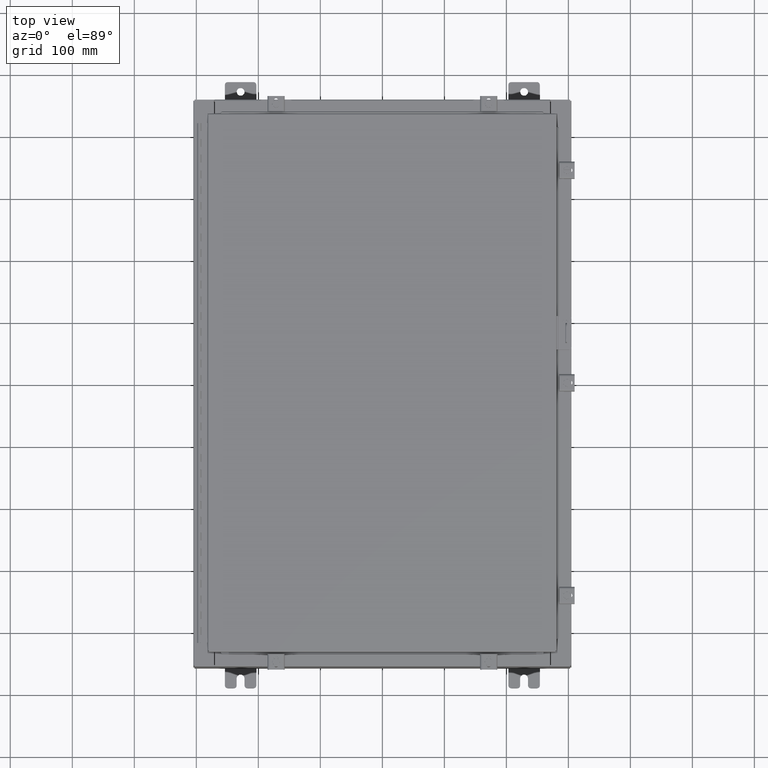
[diagram: clean part render]
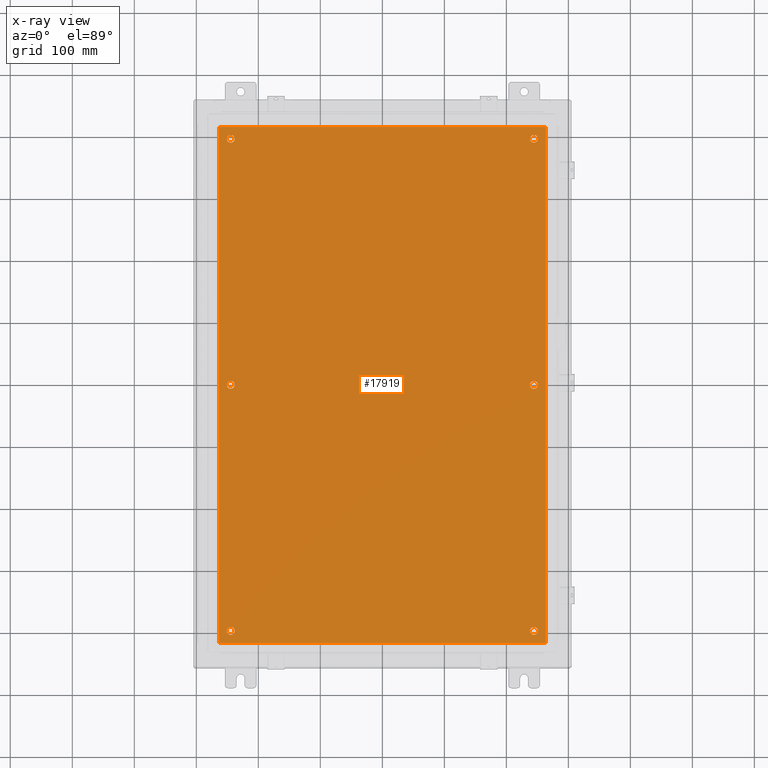
[diagram: x-ray — body ghosted, one internal face saturated and labeled with its STEP entity id]
A machine part, top view, then the same camera in x-ray: the body is ghosted and one INTERNAL B-rep face — a face not visible from any outside direction — is saturated and labeled: STEP entity #17919.
In plain terms, the highlighted planar face has unit normal (0, 0, -1).
Its self-contained STEP definition (entity closure, byte-faithful):
#24 = EDGE_CURVE ( 'NONE', #20375, #815, #9515, .T. ) ;
#240 = ORIENTED_EDGE ( 'NONE', *, *, #19596, .T. ) ;
#317 = EDGE_LOOP ( 'NONE', ( #17447, #3819 ) ) ;
#356 = EDGE_LOOP ( 'NONE', ( #40399, #34758 ) ) ;
#681 = VERTEX_POINT ( 'NONE', #19083 ) ;
#815 = VERTEX_POINT ( 'NONE', #13202 ) ;
#890 = CARTESIAN_POINT ( 'NONE',  ( 10.38300000000000100, -16.38299999999999600, -0.1040000000000008600 ) ) ;
#1996 = VERTEX_POINT ( 'NONE', #890 ) ;
#2500 = DIRECTION ( 'NONE',  ( 1.000000000000000000, -0.0000000000000000000, -0.0000000000000000000 ) ) ;
#3105 = CIRCLE ( 'NONE', #25142, 0.2499999999999998100 ) ;
#3367 = CARTESIAN_POINT ( 'NONE',  ( -10.38300000000000100, 16.38300000000000300, -0.1039999999999988200 ) ) ;
#3374 = CARTESIAN_POINT ( 'NONE',  ( -9.875000000000007100, -15.62500000000000200, -0.1040000000000000400 ) ) ;
#3436 = EDGE_CURVE ( 'NONE', #17209, #27864, #36183, .T. ) ;
#3663 = VECTOR ( 'NONE', #22872, 39.37007874015748100 ) ;
#3680 = VERTEX_POINT ( 'NONE', #15118 ) ;
#3767 = AXIS2_PLACEMENT_3D ( 'NONE', #33427, #13783, #36730 ) ;
#3819 = ORIENTED_EDGE ( 'NONE', *, *, #33377, .T. ) ;
#5242 = VECTOR ( 'NONE', #37963, 39.37007874015748100 ) ;
#5345 = DIRECTION ( 'NONE',  ( -1.000000000000000000, 0.0000000000000000000, -0.0000000000000000000 ) ) ;
#5378 = ORIENTED_EDGE ( 'NONE', *, *, #39048, .T. ) ;
#6387 = AXIS2_PLACEMENT_3D ( 'NONE', #11562, #34528, #14861 ) ;
#6413 = ORIENTED_EDGE ( 'NONE', *, *, #39363, .F. ) ;
#6574 = FACE_BOUND ( 'NONE', #13461, .T. ) ;
#6702 = EDGE_CURVE ( 'NONE', #815, #20375, #18665, .T. ) ;
#6957 = ORIENTED_EDGE ( 'NONE', *, *, #3436, .T. ) ;
#7364 = EDGE_LOOP ( 'NONE', ( #13722, #6413, #33625, #38542 ) ) ;
#7974 = ORIENTED_EDGE ( 'NONE', *, *, #24, .T. ) ;
#8390 = CARTESIAN_POINT ( 'NONE',  ( 9.625000000000007100, 2.620299400612403500E-015, -0.1040000000000000400 ) ) ;
#8492 = CARTESIAN_POINT ( 'NONE',  ( -9.875000000000007100, 15.62500000000000200, -0.1040000000000000400 ) ) ;
#8574 = EDGE_CURVE ( 'NONE', #26421, #36273, #27223, .T. ) ;
#9242 = ORIENTED_EDGE ( 'NONE', *, *, #21433, .T. ) ;
#9515 = CIRCLE ( 'NONE', #22534, 0.2500000000000008900 ) ;
#9617 = EDGE_LOOP ( 'NONE', ( #5378, #9242 ) ) ;
#9637 = CARTESIAN_POINT ( 'NONE',  ( 9.875000000000007100, 15.62500000000000200, -0.1040000000000000400 ) ) ;
#9793 = CARTESIAN_POINT ( 'NONE',  ( -9.625000000000005300, 2.628543122537473900E-016, -0.1040000000000000400 ) ) ;
#10084 = EDGE_CURVE ( 'NONE', #28960, #1996, #23552, .T. ) ;
#10137 = ORIENTED_EDGE ( 'NONE', *, *, #40440, .T. ) ;
#10491 = DIRECTION ( 'NONE',  ( -0.0000000000000000000, -0.0000000000000000000, 1.000000000000000000 ) ) ;
#11430 = AXIS2_PLACEMENT_3D ( 'NONE', #31216, #11539, #34509 ) ;
#11450 = CARTESIAN_POINT ( 'NONE',  ( 9.625000000000007100, -15.62500000000000200, -0.1040000000000000400 ) ) ;
#11539 = DIRECTION ( 'NONE',  ( -0.0000000000000000000, -0.0000000000000000000, 1.000000000000000000 ) ) ;
#11562 = CARTESIAN_POINT ( 'NONE',  ( -9.625000000000007100, -15.62500000000000200, -0.1040000000000000400 ) ) ;
#11676 = DIRECTION ( 'NONE',  ( -1.000000000000000000, 0.0000000000000000000, 0.0000000000000000000 ) ) ;
#12412 = LINE ( 'NONE', #35934, #3663 ) ;
#12736 = DIRECTION ( 'NONE',  ( -0.0000000000000000000, -0.0000000000000000000, 1.000000000000000000 ) ) ;
#12766 = VECTOR ( 'NONE', #2500, 39.37007874015748100 ) ;
#12871 = LINE ( 'NONE', #31773, #28277 ) ;
#13112 = DIRECTION ( 'NONE',  ( -1.000000000000000000, 0.0000000000000000000, 0.0000000000000000000 ) ) ;
#13202 = CARTESIAN_POINT ( 'NONE',  ( -9.375000000000007100, 15.62500000000000200, -0.1040000000000000400 ) ) ;
#13461 = EDGE_LOOP ( 'NONE', ( #23571, #7974 ) ) ;
#13722 = ORIENTED_EDGE ( 'NONE', *, *, #10084, .F. ) ;
#13740 = EDGE_CURVE ( 'NONE', #19704, #19251, #22995, .T. ) ;
#13783 = DIRECTION ( 'NONE',  ( -0.0000000000000000000, -0.0000000000000000000, 1.000000000000000000 ) ) ;
#13914 = ORIENTED_EDGE ( 'NONE', *, *, #13740, .T. ) ;
#14308 = AXIS2_PLACEMENT_3D ( 'NONE', #32416, #12736, #35724 ) ;
#14570 = CIRCLE ( 'NONE', #21692, 0.2499999999999998100 ) ;
#14732 = AXIS2_PLACEMENT_3D ( 'NONE', #35242, #15538, #38512 ) ;
#14766 = DIRECTION ( 'NONE',  ( -1.000000000000000000, 0.0000000000000000000, 0.0000000000000000000 ) ) ;
#14861 = DIRECTION ( 'NONE',  ( -1.000000000000000000, 0.0000000000000000000, 0.0000000000000000000 ) ) ;
#15118 = CARTESIAN_POINT ( 'NONE',  ( 9.375000000000007100, -15.62500000000000200, -0.1040000000000000400 ) ) ;
#15301 = FACE_BOUND ( 'NONE', #356, .T. ) ;
#15538 = DIRECTION ( 'NONE',  ( -0.0000000000000000000, -0.0000000000000000000, 1.000000000000000000 ) ) ;
#16447 = DIRECTION ( 'NONE',  ( -0.0000000000000000000, -0.0000000000000000000, 1.000000000000000000 ) ) ;
#17035 = CARTESIAN_POINT ( 'NONE',  ( 9.625000000000007100, -15.62500000000000200, -0.1040000000000000400 ) ) ;
#17209 = VERTEX_POINT ( 'NONE', #17420 ) ;
#17372 = FACE_BOUND ( 'NONE', #22250, .T. ) ;
#17388 = CARTESIAN_POINT ( 'NONE',  ( 10.38300000000000100, 16.38300000000000300, -0.1040000000000008600 ) ) ;
#17420 = CARTESIAN_POINT ( 'NONE',  ( 9.875000000000007100, 2.620299400612403500E-015, -0.1040000000000000400 ) ) ;
#17447 = ORIENTED_EDGE ( 'NONE', *, *, #8574, .T. ) ;
#17694 = VERTEX_POINT ( 'NONE', #17388 ) ;
#17919 = ADVANCED_FACE ( 'NONE', ( #17372, #41543, #32787, #24022, #15301, #6574, #40531 ), #28181, .T. ) ;
#18425 = CARTESIAN_POINT ( 'NONE',  ( 0.0000000000000000000, 0.0000000000000000000, -0.1040000000000000400 ) ) ;
#18432 = CARTESIAN_POINT ( 'NONE',  ( -9.375000000000005300, 2.628543122537473900E-016, -0.1040000000000000400 ) ) ;
#18665 = CIRCLE ( 'NONE', #14308, 0.2500000000000008900 ) ;
#18828 = AXIS2_PLACEMENT_3D ( 'NONE', #17035, #40049, #20362 ) ;
#18921 = CARTESIAN_POINT ( 'NONE',  ( -10.50000000000000200, -16.38299999999999600, -0.1040000000000008600 ) ) ;
#19083 = CARTESIAN_POINT ( 'NONE',  ( 9.875000000000007100, -15.62500000000000200, -0.1040000000000000400 ) ) ;
#19251 = VERTEX_POINT ( 'NONE', #29095 ) ;
#19291 = DIRECTION ( 'NONE',  ( -0.0000000000000000000, -0.0000000000000000000, 1.000000000000000000 ) ) ;
#19547 = CIRCLE ( 'NONE', #14732, 0.2500000000000008900 ) ;
#19596 = EDGE_CURVE ( 'NONE', #27864, #17209, #31093, .T. ) ;
#19704 = VERTEX_POINT ( 'NONE', #18432 ) ;
#20296 = VERTEX_POINT ( 'NONE', #41114 ) ;
#20362 = DIRECTION ( 'NONE',  ( -1.000000000000000000, 0.0000000000000000000, 0.0000000000000000000 ) ) ;
#20375 = VERTEX_POINT ( 'NONE', #8492 ) ;
#21433 = EDGE_CURVE ( 'NONE', #3680, #681, #14570, .T. ) ;
#21692 = AXIS2_PLACEMENT_3D ( 'NONE', #11450, #34432, #14766 ) ;
#21780 = VERTEX_POINT ( 'NONE', #3367 ) ;
#22250 = EDGE_LOOP ( 'NONE', ( #6957, #240 ) ) ;
#22534 = AXIS2_PLACEMENT_3D ( 'NONE', #38957, #19291, #42270 ) ;
#22711 = LINE ( 'NONE', #34691, #5242 ) ;
#22872 = DIRECTION ( 'NONE',  ( 0.0000000000000000000, 1.000000000000000000, 0.0000000000000000000 ) ) ;
#22995 = CIRCLE ( 'NONE', #35044, 0.2500000000000008900 ) ;
#23269 = CARTESIAN_POINT ( 'NONE',  ( -10.38300000000000100, -16.38299999999999600, -0.1040000000000008600 ) ) ;
#23552 = LINE ( 'NONE', #18921, #12766 ) ;
#23571 = ORIENTED_EDGE ( 'NONE', *, *, #6702, .T. ) ;
#24022 = FACE_BOUND ( 'NONE', #9617, .T. ) ;
#24338 = EDGE_LOOP ( 'NONE', ( #13914, #10137 ) ) ;
#24650 = CIRCLE ( 'NONE', #3767, 0.2500000000000008900 ) ;
#25008 = DIRECTION ( 'NONE',  ( 0.0000000000000000000, 0.0000000000000000000, -1.000000000000000000 ) ) ;
#25142 = AXIS2_PLACEMENT_3D ( 'NONE', #36112, #16447, #39450 ) ;
#25704 = AXIS2_PLACEMENT_3D ( 'NONE', #30170, #10491, #33456 ) ;
#26421 = VERTEX_POINT ( 'NONE', #42173 ) ;
#26946 = AXIS2_PLACEMENT_3D ( 'NONE', #18425, #25008, #5345 ) ;
#27223 = CIRCLE ( 'NONE', #6387, 0.2500000000000008900 ) ;
#27258 = EDGE_CURVE ( 'NONE', #41007, #20296, #27805, .T. ) ;
#27805 = CIRCLE ( 'NONE', #25704, 0.2499999999999998100 ) ;
#27864 = VERTEX_POINT ( 'NONE', #40065 ) ;
#28181 = PLANE ( 'NONE',  #26946 ) ;
#28277 = VECTOR ( 'NONE', #35084, 39.37007874015748100 ) ;
#28960 = VERTEX_POINT ( 'NONE', #23269 ) ;
#29095 = CARTESIAN_POINT ( 'NONE',  ( -9.875000000000005300, 2.934704822324310800E-016, -0.1040000000000000400 ) ) ;
#30170 = CARTESIAN_POINT ( 'NONE',  ( 9.625000000000007100, 15.62500000000000200, -0.1040000000000000400 ) ) ;
#31093 = CIRCLE ( 'NONE', #11430, 0.2499999999999998100 ) ;
#31216 = CARTESIAN_POINT ( 'NONE',  ( 9.625000000000007100, 2.620299400612403500E-015, -0.1040000000000000400 ) ) ;
#31342 = DIRECTION ( 'NONE',  ( -0.0000000000000000000, -0.0000000000000000000, 1.000000000000000000 ) ) ;
#31773 = CARTESIAN_POINT ( 'NONE',  ( 10.50000000000000400, 16.38299999999999900, -0.1040000000000008600 ) ) ;
#32416 = CARTESIAN_POINT ( 'NONE',  ( -9.625000000000007100, 15.62500000000000200, -0.1040000000000000400 ) ) ;
#32787 = FACE_BOUND ( 'NONE', #317, .T. ) ;
#32796 = DIRECTION ( 'NONE',  ( -0.0000000000000000000, -0.0000000000000000000, 1.000000000000000000 ) ) ;
#33036 = CIRCLE ( 'NONE', #18828, 0.2499999999999998100 ) ;
#33377 = EDGE_CURVE ( 'NONE', #36273, #26421, #24650, .T. ) ;
#33427 = CARTESIAN_POINT ( 'NONE',  ( -9.625000000000007100, -15.62500000000000200, -0.1040000000000000400 ) ) ;
#33456 = DIRECTION ( 'NONE',  ( -1.000000000000000000, 0.0000000000000000000, 0.0000000000000000000 ) ) ;
#33625 = ORIENTED_EDGE ( 'NONE', *, *, #40422, .F. ) ;
#34432 = DIRECTION ( 'NONE',  ( -0.0000000000000000000, -0.0000000000000000000, 1.000000000000000000 ) ) ;
#34509 = DIRECTION ( 'NONE',  ( -1.000000000000000000, 0.0000000000000000000, 0.0000000000000000000 ) ) ;
#34528 = DIRECTION ( 'NONE',  ( -0.0000000000000000000, -0.0000000000000000000, 1.000000000000000000 ) ) ;
#34691 = CARTESIAN_POINT ( 'NONE',  ( -10.38300000000000100, 16.38300000000000300, -0.1039999999999988200 ) ) ;
#34758 = ORIENTED_EDGE ( 'NONE', *, *, #39962, .T. ) ;
#35044 = AXIS2_PLACEMENT_3D ( 'NONE', #9793, #32796, #13112 ) ;
#35084 = DIRECTION ( 'NONE',  ( -1.000000000000000000, -0.0000000000000000000, -0.0000000000000000000 ) ) ;
#35242 = CARTESIAN_POINT ( 'NONE',  ( -9.625000000000005300, 2.628543122537473900E-016, -0.1040000000000000400 ) ) ;
#35724 = DIRECTION ( 'NONE',  ( -1.000000000000000000, 0.0000000000000000000, 0.0000000000000000000 ) ) ;
#35934 = CARTESIAN_POINT ( 'NONE',  ( 10.38300000000000100, -16.38299999999999600, -0.1040000000000008600 ) ) ;
#36112 = CARTESIAN_POINT ( 'NONE',  ( 9.625000000000007100, 15.62500000000000200, -0.1040000000000000400 ) ) ;
#36183 = CIRCLE ( 'NONE', #39139, 0.2499999999999998100 ) ;
#36273 = VERTEX_POINT ( 'NONE', #3374 ) ;
#36730 = DIRECTION ( 'NONE',  ( -1.000000000000000000, 0.0000000000000000000, 0.0000000000000000000 ) ) ;
#37963 = DIRECTION ( 'NONE',  ( 0.0000000000000000000, -1.000000000000000000, 0.0000000000000000000 ) ) ;
#38512 = DIRECTION ( 'NONE',  ( -1.000000000000000000, 0.0000000000000000000, 0.0000000000000000000 ) ) ;
#38542 = ORIENTED_EDGE ( 'NONE', *, *, #39626, .F. ) ;
#38957 = CARTESIAN_POINT ( 'NONE',  ( -9.625000000000007100, 15.62500000000000200, -0.1040000000000000400 ) ) ;
#39048 = EDGE_CURVE ( 'NONE', #681, #3680, #33036, .T. ) ;
#39139 = AXIS2_PLACEMENT_3D ( 'NONE', #8390, #31342, #11676 ) ;
#39363 = EDGE_CURVE ( 'NONE', #21780, #28960, #22711, .T. ) ;
#39450 = DIRECTION ( 'NONE',  ( -1.000000000000000000, 0.0000000000000000000, 0.0000000000000000000 ) ) ;
#39626 = EDGE_CURVE ( 'NONE', #1996, #17694, #12412, .T. ) ;
#39962 = EDGE_CURVE ( 'NONE', #20296, #41007, #3105, .T. ) ;
#40049 = DIRECTION ( 'NONE',  ( -0.0000000000000000000, -0.0000000000000000000, 1.000000000000000000 ) ) ;
#40065 = CARTESIAN_POINT ( 'NONE',  ( 9.375000000000007100, 2.650915570591087300E-015, -0.1040000000000000400 ) ) ;
#40399 = ORIENTED_EDGE ( 'NONE', *, *, #27258, .T. ) ;
#40422 = EDGE_CURVE ( 'NONE', #17694, #21780, #12871, .T. ) ;
#40440 = EDGE_CURVE ( 'NONE', #19251, #19704, #19547, .T. ) ;
#40531 = FACE_OUTER_BOUND ( 'NONE', #7364, .T. ) ;
#41007 = VERTEX_POINT ( 'NONE', #9637 ) ;
#41114 = CARTESIAN_POINT ( 'NONE',  ( 9.375000000000007100, 15.62500000000000200, -0.1040000000000000400 ) ) ;
#41543 = FACE_BOUND ( 'NONE', #24338, .T. ) ;
#42173 = CARTESIAN_POINT ( 'NONE',  ( -9.375000000000007100, -15.62500000000000200, -0.1040000000000000400 ) ) ;
#42270 = DIRECTION ( 'NONE',  ( -1.000000000000000000, 0.0000000000000000000, 0.0000000000000000000 ) ) ;